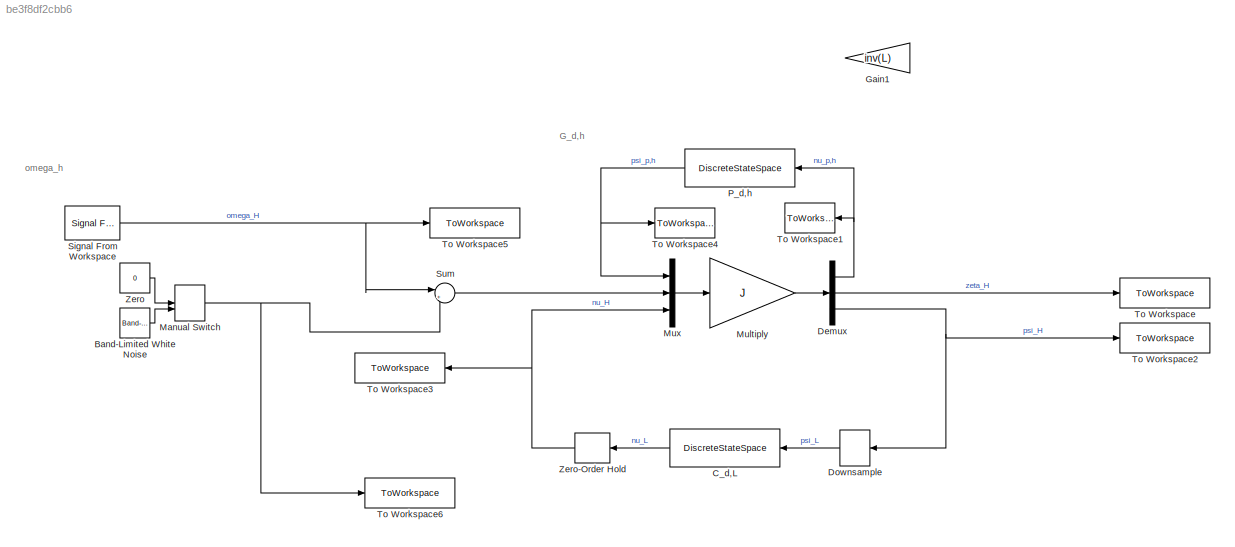
MODEL slx_be3f8df2cbb6
KIND model
CONFIG AbsTol = auto
CONFIG EnableMultiTasking = off
CONFIG FixedStep = auto
CONFIG MaxStep = auto
CONFIG MinStep = auto
CONFIG RelTol = 1e-3
CONFIG SampleTimeConstraint = Unconstrained
CONFIG SolverName = VariableStepAuto
CONFIG StartTime = 0.0
CONFIG StopTime = t(end)
BLOCK [Reference] Band-Limited White Noise  REF=simulink/Sources/Band-Limited
White Noise
  Ports = [0, 1]
  SourceBlock = simulink/Sources/Band-Limited\nWhite Noise
  SourceProductBaseCode = SL
  SourceType = Band-Limited White Noise.
BLOCK [DiscreteStateSpace] C_d,L
  A = ss(Kd).A
  B = ss(Kd).B
  C = ss(Kd).C
  D = ss(Kd).D
  SampleTime = TsL
BLOCK [Demux] Demux
  Outputs = 3
  Ports = [1, 3]
BLOCK [DownSample] Downsample
  InputProcessing = Elements as channels (sample based)
  N = F
  RateOptions = Allow multirate processing
BLOCK [Gain] Gain1
  Commented = on
  Gain = inv(L)
  Multiplication = Matrix(K*u)
BLOCK [ManualSwitch] Manual Switch
BLOCK [Gain] Multiply
  Gain = J
  Multiplication = Matrix(K*u) (u vector)
BLOCK [Mux] Mux
  DisplayOption = bar
  Inputs = 3
  Ports = [3, 1]
BLOCK [DiscreteStateSpace] P_d,h
  A = ss(Pd).A
  B = ss(Pd).B
  C = ss(Pd).C
  D = ss(Pd).D
  SampleTime = TsH
BLOCK [Reference] Signal From Workspace  REF=dspsrcs4/Signal From
Workspace
  Ports = [0, 1]
  SourceBlock = dspsrcs4/Signal From\nWorkspace
  SourceProductBaseCode = DS
  SourceType = Signal From Workspace
BLOCK [Sum] Sum
  Inputs = |++
  Ports = [2, 1]
BLOCK [ToWorkspace] To Workspace
  FixptAsFi = on
  MaxDataPoints = inf
  Ports = [1]
  SampleTime = TsH
  Save2DSignal = 2-D array (concatenate along first dimension)
  VariableName = zeta
BLOCK [ToWorkspace] To Workspace1
  FixptAsFi = on
  MaxDataPoints = inf
  Ports = [1]
  SampleTime = TsH
  Save2DSignal = 2-D array (concatenate along first dimension)
  VariableName = nuph
BLOCK [ToWorkspace] To Workspace2
  FixptAsFi = on
  MaxDataPoints = inf
  Ports = [1]
  SampleTime = TsH
  Save2DSignal = 2-D array (concatenate along first dimension)
  VariableName = psih
BLOCK [ToWorkspace] To Workspace3
  FixptAsFi = on
  MaxDataPoints = inf
  Ports = [1]
  SampleTime = TsH
  Save2DSignal = 2-D array (concatenate along first dimension)
  VariableName = nuh
BLOCK [ToWorkspace] To Workspace4
  FixptAsFi = on
  MaxDataPoints = inf
  Ports = [1]
  SampleTime = TsH
  Save2DSignal = 2-D array (concatenate along first dimension)
  VariableName = psiph
BLOCK [ToWorkspace] To Workspace5
  FixptAsFi = on
  MaxDataPoints = inf
  Ports = [1]
  SampleTime = TsH
  Save2DSignal = 2-D array (concatenate along first dimension)
  VariableName = omega
BLOCK [ToWorkspace] To Workspace6
  FixptAsFi = on
  MaxDataPoints = inf
  Ports = [1]
  SampleTime = TsH
  Save2DSignal = 2-D array (concatenate along first dimension)
  VariableName = noise
BLOCK [Constant] Zero
  OutDataTypeStr = Inherit: Inherit via back propagation
  Value = 0
BLOCK [ZeroOrderHold] Zero-Order Hold
  SampleTime = TsH
ANNOTATION (root): G_d,h
ANNOTATION (root): omega_h
LINE Band-Limited White Noise:1 -> Manual Switch:2
LINE C_d,L:1 -> Zero-Order Hold:1
NET Demux:1 -> P_d,h:1, To Workspace1:1
LINE Demux:2 -> To Workspace:1
NET Demux:3 -> Downsample:1, To Workspace2:1
LINE Downsample:1 -> C_d,L:1
NET Manual Switch:1 -> Sum:2, To Workspace6:1
LINE Multiply:1 -> Demux:1
LINE Mux:1 -> Multiply:1
NET P_d,h:1 -> Mux:1, To Workspace4:1
NET Signal From Workspace:1 -> Sum:1, To Workspace5:1
LINE Sum:1 -> Mux:2
NET Zero-Order Hold:1 -> Mux:3, To Workspace3:1
LINE Zero:1 -> Manual Switch:1
note: NET lines group one-source signal fan-out (src -> all destinations, sorted); 1:1 wires keep LINE
